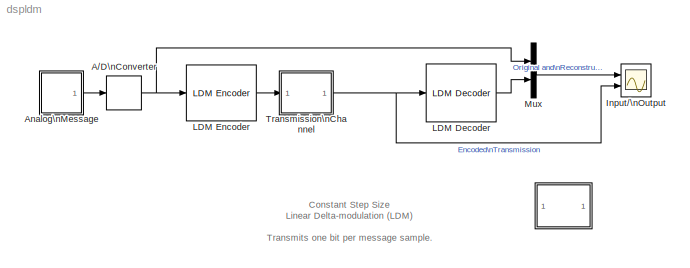
MODEL dspldm
KIND model
CONFIG AbsTol = 1e-6
CONFIG FixedStep = 1/64000
CONFIG MaxStep = 1/64000
CONFIG MinStep = auto
CONFIG RelTol = 1e-3
CONFIG Solver = ode5
CONFIG SolverMode = SingleTasking
CONFIG StartTime = 0.0
CONFIG StopTime = 99999
BLOCK [SubSystem]  
  MaskDisplay = disp('Info')
  MaskIconFrame = on
  MaskIconOpaque = on
  MaskIconRotate = none
  MaskIconUnits = autoscale
  MaskType = LDM Info block
  Ports = []
  RTWFcnNameOpts = Auto
  RTWFileNameOpts = Auto
  RTWSystemCode = Auto
  ShowPortLabels = on
  TreatAsAtomicUnit = off
BLOCK [ZeroOrderHold] A//D\nConverter
  SampleTime = 1/8000
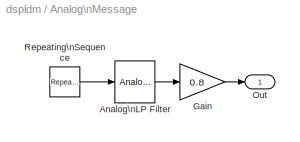
BLOCK [SubSystem] Analog\nMessage
  Ports = [0, 1]
  RTWFcnNameOpts = Auto
  RTWFileNameOpts = Auto
  RTWSystemCode = Auto
  ShowPortLabels = on
  TreatAsAtomicUnit = off
BLOCK [Reference] Analog\nMessage/Analog\nLP Filter  REF=dspddes2/Analog\nFilter Design
  N = 5
  Ports = [1, 1]
  Rp = 3
  Rs = 40
  SourceBlock = dspddes2/Analog\nFilter Design
  SourceType = Analog Filter Design
  Whi = 80
  Wlo = 2*pi*400
  filttype = Lowpass
  method = Butterworth
BLOCK [Gain] Analog\nMessage/Gain
  Gain = 0.8
  Multiplication = Element-wise(K.*u)
  SaturateOnIntegerOverflow = on
BLOCK [Outport] Analog\nMessage/Out
  InitialOutput = 0
  OutputWhenDisabled = held
  Port = 1
BLOCK [Reference] Analog\nMessage/Repeating\nSequence  REF=simulink3/Sources/Repeating\nSequence
  Ports = [0, 1]
  SourceBlock = simulink3/Sources/Repeating\nSequence
  SourceType = Repeating table
  rep_seq_t = [0 .005 .005 .015 .015 .02]
  rep_seq_y = [1 1 -1 -1 1 1]
BLOCK [Scope] Input//\nOutput
  DataFormat = Array
  Decimation = 1
  Floating = off
  Grid = on
  LimitDataPoints = on
  MaxDataPoints = 5000
  NumInputPorts = 2
  Ports = [2]
  SampleInput = off
  SampleTime = 0
  SaveName = ScopeData
  SaveToWorkspace = off
  TickLabels = OneTimeTick
  TimeRange = 0.02
  YMax = 1.5~1.1
  YMin = -1.5~-0.1
  ZoomMode = on
BLOCK [Reference] LDM Decoder  REF=dspwvfmcdlib/LDM Decoder
  Ports = [1, 1]
  SourceBlock = dspwvfmcdlib/LDM Decoder
  SourceType = LDM Decoder
  Tau = 0.91
BLOCK [Reference] LDM Encoder  REF=dspwvfmcdlib/LDM Encoder
  EncTau = 0.91
  Ports = [1, 1]
  SourceBlock = dspwvfmcdlib/LDM Encoder
  SourceType = LDM Encoder
BLOCK [Mux] Mux
  DisplayOption = bar
  Inputs = 2
  Ports = [2, 1]
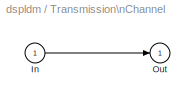
BLOCK [SubSystem] Transmission\nChannel
  Ports = [1, 1]
  RTWFcnNameOpts = Auto
  RTWFileNameOpts = Auto
  RTWSystemCode = Auto
  ShowPortLabels = on
  TreatAsAtomicUnit = off
BLOCK [Inport] Transmission\nChannel/In
  Interpolate = on
  Port = 1
BLOCK [Outport] Transmission\nChannel/Out
  InitialOutput = 0
  OutputWhenDisabled = held
  Port = 1
NET A//D\nConverter:1 -> LDM Encoder:1, Mux:1
LINE Analog\nMessage/Analog\nLP Filter:1 -> Analog\nMessage/Gain:1
LINE Analog\nMessage/Gain:1 -> Analog\nMessage/Out:1
LINE Analog\nMessage/Repeating\nSequence:1 -> Analog\nMessage/Analog\nLP Filter:1
LINE Analog\nMessage:1 -> A//D\nConverter:1
LINE LDM Decoder:1 -> Mux:2
LINE LDM Encoder:1 -> Transmission\nChannel:1
LINE Mux:1 -> Input//\nOutput:1
LINE Transmission\nChannel/In:1 -> Transmission\nChannel/Out:1
NET Transmission\nChannel:1 -> Input//\nOutput:2, LDM Decoder:1
note: NET lines group one-source signal fan-out (src -> all destinations, sorted); 1:1 wires keep LINE
